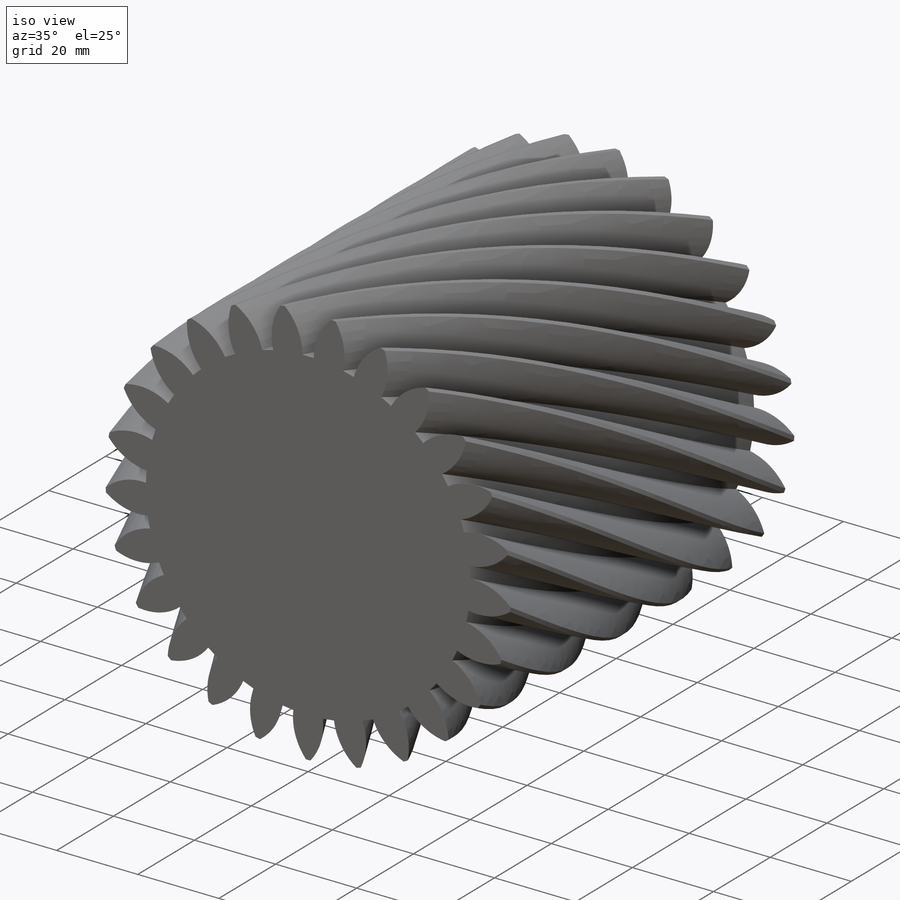
[diagram: iso view]
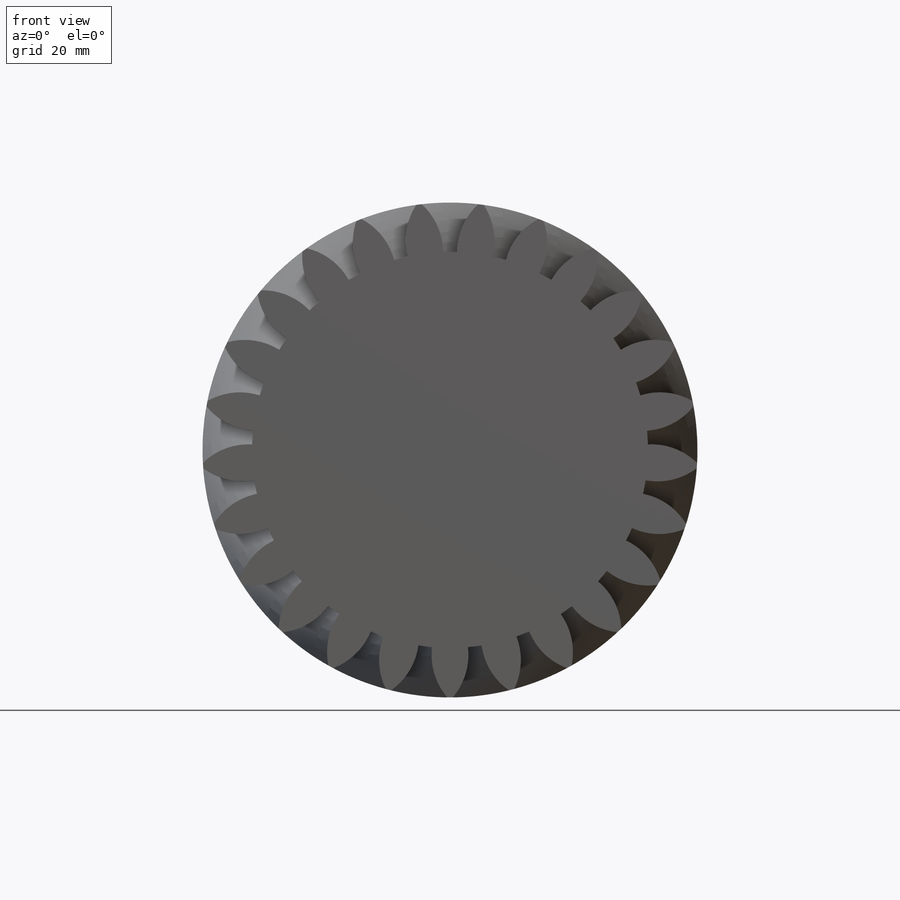
[diagram: front view]
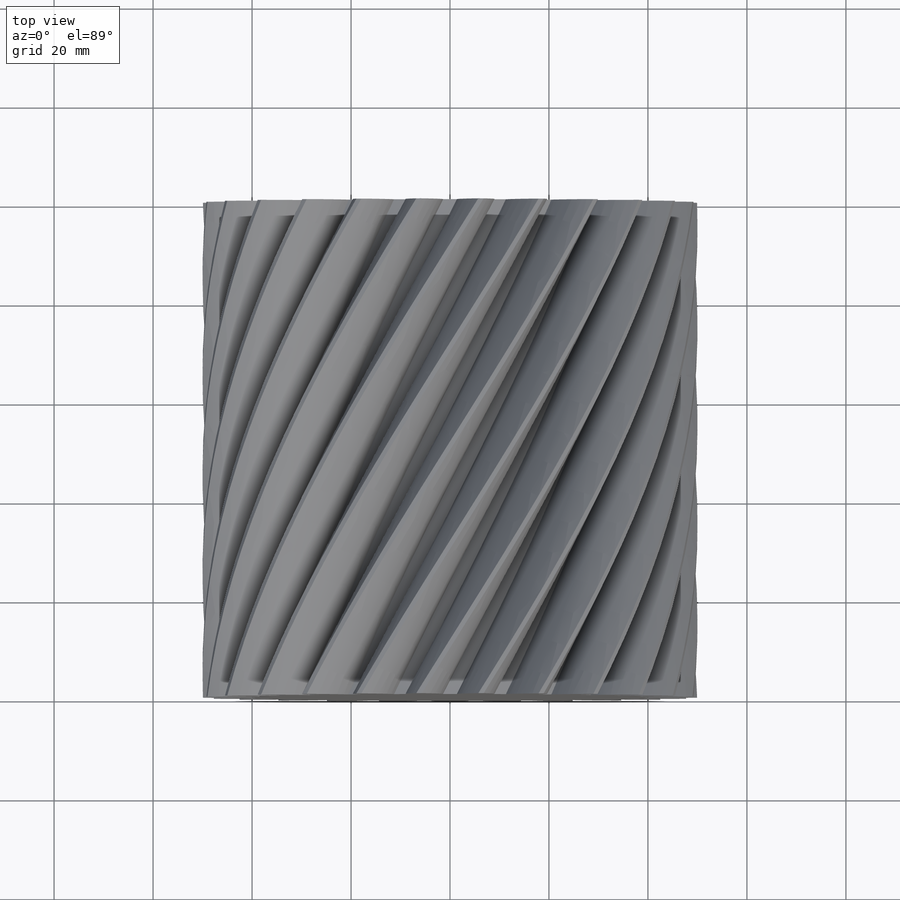
[diagram: top view]
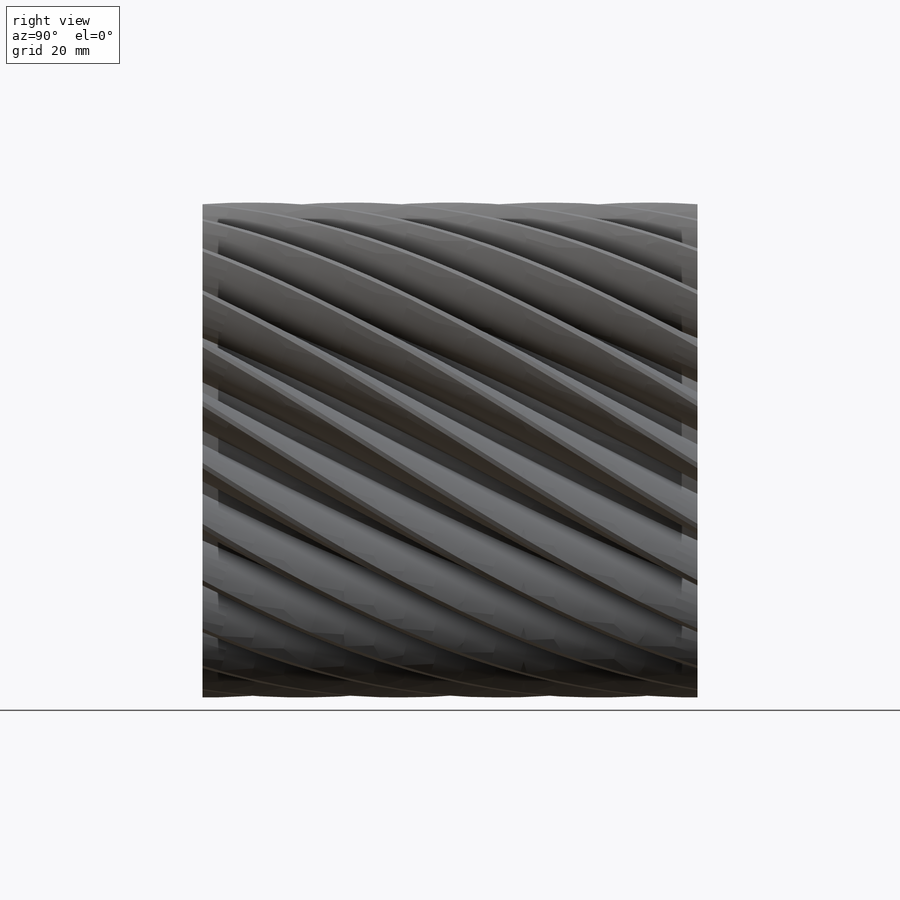
[diagram: right view]
SOLIDWORKS PART (.sldprt)
format: sldprt  version: not decoded by parser v0  size: 1,913,344 bytes
history: native  units: mm
features: plane x4, sketch x3, material x1, revolve x1, helix x1, sweep x1, pattern_circular x1 (+9 scaffold rows collapsed)
feature tree (21):
  scaffold x9  (default folders/planes/origin — collapsed)
  material  "Material <nicht festgelegt>"
  plane  "Ebene vorne"
  plane  "Ebene oben"
  plane  "Ebene rechts"
  sketch  "Skizze1"  dims[D1=100.0mm D2=100.0mm]
  revolve  "Rotation1"  Angle=360deg
  sketch  "Skizze2"  dims[D1=0.0mm]
  helix  "Spirale/Helix1"  Pitch=100mm
  plane  "Ebene4"
  sketch  "Skizze3"  dims[c1.D1=0.25mm c1.D6=0.25mm c2.D1=2.5mm c2.D2=15.0mm c2.D3=10.0mm c2.D4=10.0mm c2.D5=40.0mm c2.D6=~25.136085mm c3.D2=1.25mm c3.D3=~1.252011mm c3.D4=5.0mm c3.D5=1.25mm c3.D6=~1.252011mm c3.D7=5.0mm c4.D3=1.25mm c4.D4=5.0mm c4.D6=~25.136085mm c4.D7=40.0mm c4.D8=50.0mm c4.D9=65.0mm c5.D7=40.0mm c5.D1=2.5mm]
  sweep  "Schnitt-Austragung1"
  pattern_circular  "Kreismuster1"  Count=25 Angle=360deg
decode coverage: 6 of 7 modeling features carry decoded parameters
note: ~ marks probable driven/reference dimensions
note: suppression state not decoded; provenance and decode notes live in map.json
